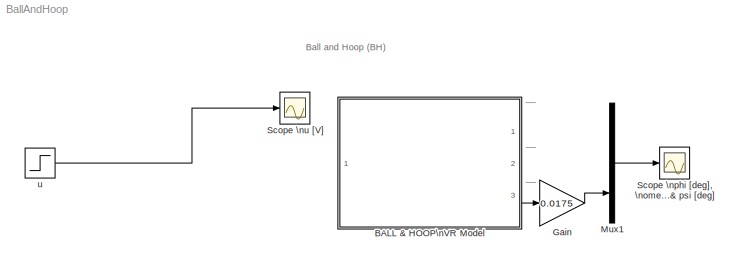
MODEL BallAndHoop
KIND model
CONFIG InitFcn = g = 9.81; %gravitational constant\n\n % showVR = 0; %show VR world\n%  psi_init = 0; %initial condition\n
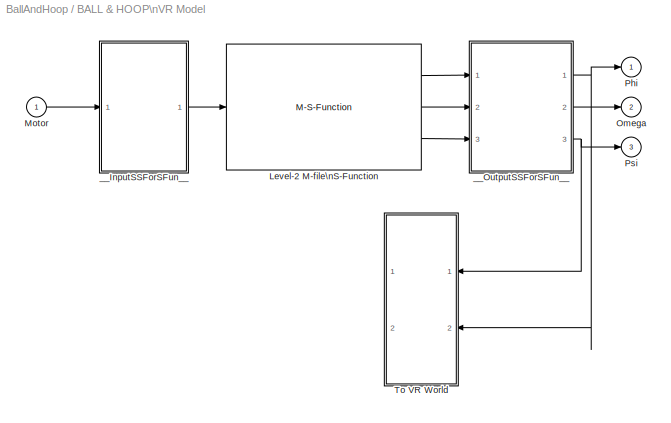
BLOCK [SubSystem] BALL & HOOP\nVR Model
  Ports = [1, 3]
  RequestExecContextInheritance = off
  SID = 1
  Variant = off
BLOCK [M-S-Function] BALL & HOOP\nVR Model/Level-2 M-file\nS-Function
  FunctionName = ballHoop_msfcn
  Parameters = phi0, brake
  Ports = [1, 3]
  SID = 33
BLOCK [Inport] BALL & HOOP\nVR Model/Motor
  IconDisplay = Port number
  SID = 2
BLOCK [Outport] BALL & HOOP\nVR Model/Omega
  IconDisplay = Port number
  OutDataTypeStr = double
  Port = 2
  PortDimensions = 1
  SID = 27
  SampleTime = [-1 0]
  SignalType = real
BLOCK [Outport] BALL & HOOP\nVR Model/Phi
  IconDisplay = Port number
  OutDataTypeStr = double
  PortDimensions = 1
  SID = 26
  SampleTime = [-1 0]
  SignalType = real
BLOCK [Outport] BALL & HOOP\nVR Model/Psi
  IconDisplay = Port number
  OutDataTypeStr = double
  Port = 3
  PortDimensions = 1
  SID = 28
  SampleTime = [-1 0]
  SignalType = real
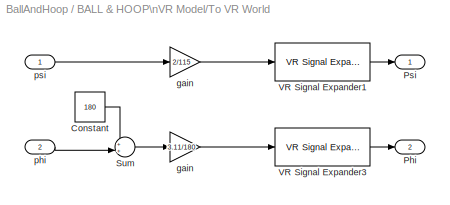
BLOCK [SubSystem] BALL & HOOP\nVR Model/To VR World
  Ports = [2, 2]
  RequestExecContextInheritance = off
  SID = 4
  Variant = off
BLOCK [Constant] BALL & HOOP\nVR Model/To VR World/Constant
  SID = 7
  Value = 180
BLOCK [Outport] BALL & HOOP\nVR Model/To VR World/Phi
  IconDisplay = Port number
  Port = 2
  SID = 14
BLOCK [Outport] BALL & HOOP\nVR Model/To VR World/Psi
  IconDisplay = Port number
  SID = 13
BLOCK [Sum] BALL & HOOP\nVR Model/To VR World/Sum
  IconShape = round
  InputSameDT = off
  Inputs = ++|
  OutDataTypeStr = Inherit: Inherit via internal rule
  Ports = [2, 1]
  SID = 8
  SaturateOnIntegerOverflow = off
BLOCK [Reference] BALL & HOOP\nVR Model/To VR World/VR Signal Expander1  REF=vrlib/VR Signal Expander
  Ports = [1, 1]
  SID = 9
  SourceBlock = vrlib/VR Signal Expander
  SourceProductBaseCode = VR
  SourceProductName = Simulink 3D Animation
  SourceType = VR Signal Expander
  outidx = [4]
  outwidth = 4
BLOCK [Reference] BALL & HOOP\nVR Model/To VR World/VR Signal Expander3  REF=vrlib/VR Signal Expander
  Ports = [1, 1]
  SID = 10
  SourceBlock = vrlib/VR Signal Expander
  SourceProductBaseCode = VR
  SourceProductName = Simulink 3D Animation
  SourceType = VR Signal Expander
  outidx = [4]
  outwidth = 4
BLOCK [Gain] BALL & HOOP\nVR Model/To VR World/gain
  Gain = 2/115
  OutDataTypeStr = Inherit: Inherit via internal rule
  ParamDataTypeStr = Inherit: Inherit via internal rule
  SID = 11
  SaturateOnIntegerOverflow = off
BLOCK [Gain] BALL & HOOP\nVR Model/To VR World/gain 
  Gain = 3.11/180
  OutDataTypeStr = Inherit: Inherit via internal rule
  ParamDataTypeStr = Inherit: Inherit via internal rule
  SID = 12
  SaturateOnIntegerOverflow = off
BLOCK [Inport] BALL & HOOP\nVR Model/To VR World/phi
  IconDisplay = Port number
  Port = 2
  SID = 6
BLOCK [Inport] BALL & HOOP\nVR Model/To VR World/psi
  IconDisplay = Port number
  SID = 5
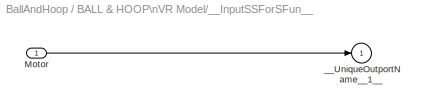
BLOCK [SubSystem] BALL & HOOP\nVR Model/__InputSSForSFun__
  PermitHierarchicalResolution = ExplicitOnly
  Ports = [1, 1]
  RequestExecContextInheritance = off
  SID = 16
  Variant = off
BLOCK [Inport] BALL & HOOP\nVR Model/__InputSSForSFun__/Motor
  IconDisplay = Port number
  SID = 17
BLOCK [Outport] BALL & HOOP\nVR Model/__InputSSForSFun__/__UniqueOutportName__1__
  IconDisplay = Port number
  SID = 18
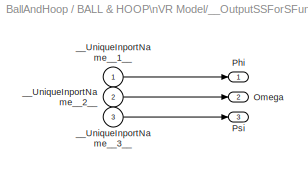
BLOCK [SubSystem] BALL & HOOP\nVR Model/__OutputSSForSFun__
  PermitHierarchicalResolution = ExplicitOnly
  Ports = [3, 3]
  RequestExecContextInheritance = off
  SID = 19
  Variant = off
BLOCK [Outport] BALL & HOOP\nVR Model/__OutputSSForSFun__/Omega
  IconDisplay = Port number
  OutDataTypeStr = double
  Port = 2
  PortDimensions = 1
  SID = 24
  SampleTime = [-1 0]
  SignalType = real
BLOCK [Outport] BALL & HOOP\nVR Model/__OutputSSForSFun__/Phi
  IconDisplay = Port number
  OutDataTypeStr = double
  PortDimensions = 1
  SID = 23
  SampleTime = [-1 0]
  SignalType = real
BLOCK [Outport] BALL & HOOP\nVR Model/__OutputSSForSFun__/Psi
  IconDisplay = Port number
  OutDataTypeStr = double
  Port = 3
  PortDimensions = 1
  SID = 25
  SampleTime = [-1 0]
  SignalType = real
BLOCK [Inport] BALL & HOOP\nVR Model/__OutputSSForSFun__/__UniqueInportName__1__
  IconDisplay = Port number
  SID = 20
BLOCK [Inport] BALL & HOOP\nVR Model/__OutputSSForSFun__/__UniqueInportName__2__
  IconDisplay = Port number
  Port = 2
  SID = 21
BLOCK [Inport] BALL & HOOP\nVR Model/__OutputSSForSFun__/__UniqueInportName__3__
  IconDisplay = Port number
  Port = 3
  SID = 22
BLOCK [Gain] Gain
  Gain = 0.0175
  OutDataTypeStr = Inherit: Inherit via internal rule
  ParamDataTypeStr = Inherit: Inherit via internal rule
  SID = 38
  SaturateOnIntegerOverflow = off
BLOCK [Mux] Mux1
  DisplayOption = bar
  Inputs = 3
  Ports = [3, 1]
  SID = 29
BLOCK [Scope] Scope \nphi [deg], \nomega [rot//min] \n& psi [deg]
  NumInputPorts = 1
  Ports = [1]
  SID = 30
  ScopeSpecificationString = Simulink.scopes.TimeScopeBlockCfg('CurrentConfiguration', extmgr.ConfigurationSet(extmgr.Configuration('Core','General UI',true),extmgr.Configuration('Core','Source UI',true),extmgr.Configuration('Sources','WiredSimulink',true,'DataLogging',true,'DataLoggingVariableName','ll','DataLoggingSaveFormat','Array','DataLoggingMaxPoints','500000','DataLoggingLimitDataPoints',true,'DataLoggingDecimation','...<+2178ch>
BLOCK [Scope] Scope \nu [V]
  NumInputPorts = 1
  Ports = [1]
  SID = 31
  ScopeSpecificationString = Simulink.scopes.TimeScopeBlockCfg('CurrentConfiguration', extmgr.ConfigurationSet(extmgr.Configuration('Core','General UI',true),extmgr.Configuration('Core','Source UI',true),extmgr.Configuration('Sources','WiredSimulink',true,'DataLogging',true,'DataLoggingVariableName','tu','DataLoggingSaveFormat','Array','DataLoggingMaxPoints','500000','DataLoggingLimitDataPoints',true,'DataLoggingDecimation','...<+1731ch>
BLOCK [Step] u
  After = 0.4
  Before = 1
  SID = 32
  SampleTime = 0
  Time = 5
ANNOTATION (root): Ball and Hoop (BH)
ANNOTATION (root): __
LINE BALL & HOOP\nVR Model/Level-2 M-file\nS-Function:1 -> BALL & HOOP\nVR Model/__OutputSSForSFun__:1
LINE BALL & HOOP\nVR Model/Level-2 M-file\nS-Function:2 -> BALL & HOOP\nVR Model/__OutputSSForSFun__:2
LINE BALL & HOOP\nVR Model/Level-2 M-file\nS-Function:3 -> BALL & HOOP\nVR Model/__OutputSSForSFun__:3
LINE BALL & HOOP\nVR Model/Motor:1 -> BALL & HOOP\nVR Model/__InputSSForSFun__:1
LINE BALL & HOOP\nVR Model/To VR World/Constant:1 -> BALL & HOOP\nVR Model/To VR World/Sum:1
LINE BALL & HOOP\nVR Model/To VR World/Sum:1 -> BALL & HOOP\nVR Model/To VR World/gain :1
LINE BALL & HOOP\nVR Model/To VR World/VR Signal Expander1:1 -> BALL & HOOP\nVR Model/To VR World/Psi:1
LINE BALL & HOOP\nVR Model/To VR World/VR Signal Expander3:1 -> BALL & HOOP\nVR Model/To VR World/Phi:1
LINE BALL & HOOP\nVR Model/To VR World/gain :1 -> BALL & HOOP\nVR Model/To VR World/VR Signal Expander3:1
LINE BALL & HOOP\nVR Model/To VR World/gain:1 -> BALL & HOOP\nVR Model/To VR World/VR Signal Expander1:1
LINE BALL & HOOP\nVR Model/To VR World/phi:1 -> BALL & HOOP\nVR Model/To VR World/Sum:2
LINE BALL & HOOP\nVR Model/To VR World/psi:1 -> BALL & HOOP\nVR Model/To VR World/gain:1
LINE BALL & HOOP\nVR Model/__InputSSForSFun__/Motor:1 -> BALL & HOOP\nVR Model/__InputSSForSFun__/__UniqueOutportName__1__:1
LINE BALL & HOOP\nVR Model/__InputSSForSFun__:1 -> BALL & HOOP\nVR Model/Level-2 M-file\nS-Function:1
LINE BALL & HOOP\nVR Model/__OutputSSForSFun__/__UniqueInportName__1__:1 -> BALL & HOOP\nVR Model/__OutputSSForSFun__/Phi:1
LINE BALL & HOOP\nVR Model/__OutputSSForSFun__/__UniqueInportName__2__:1 -> BALL & HOOP\nVR Model/__OutputSSForSFun__/Omega:1
LINE BALL & HOOP\nVR Model/__OutputSSForSFun__/__UniqueInportName__3__:1 -> BALL & HOOP\nVR Model/__OutputSSForSFun__/Psi:1
NET BALL & HOOP\nVR Model/__OutputSSForSFun__:1 -> BALL & HOOP\nVR Model/Phi:1, BALL & HOOP\nVR Model/To VR World:2
LINE BALL & HOOP\nVR Model/__OutputSSForSFun__:2 -> BALL & HOOP\nVR Model/Omega:1
NET BALL & HOOP\nVR Model/__OutputSSForSFun__:3 -> BALL & HOOP\nVR Model/Psi:1, BALL & HOOP\nVR Model/To VR World:1
LINE BALL & HOOP\nVR Model:3 -> Gain:1
LINE Gain:1 -> Mux1:3
LINE Mux1:1 -> Scope \nphi [deg], \nomega [rot//min] \n& psi [deg]:1
LINE u:1 -> Scope \nu [V]:1
note: NET lines group one-source signal fan-out (src -> all destinations, sorted); 1:1 wires keep LINE
